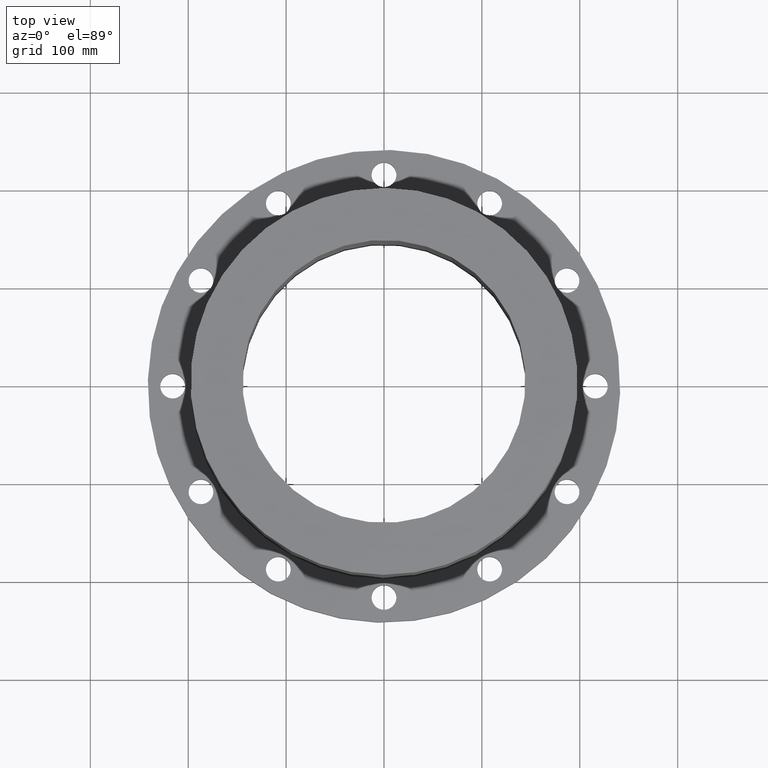
[diagram: clean part render]
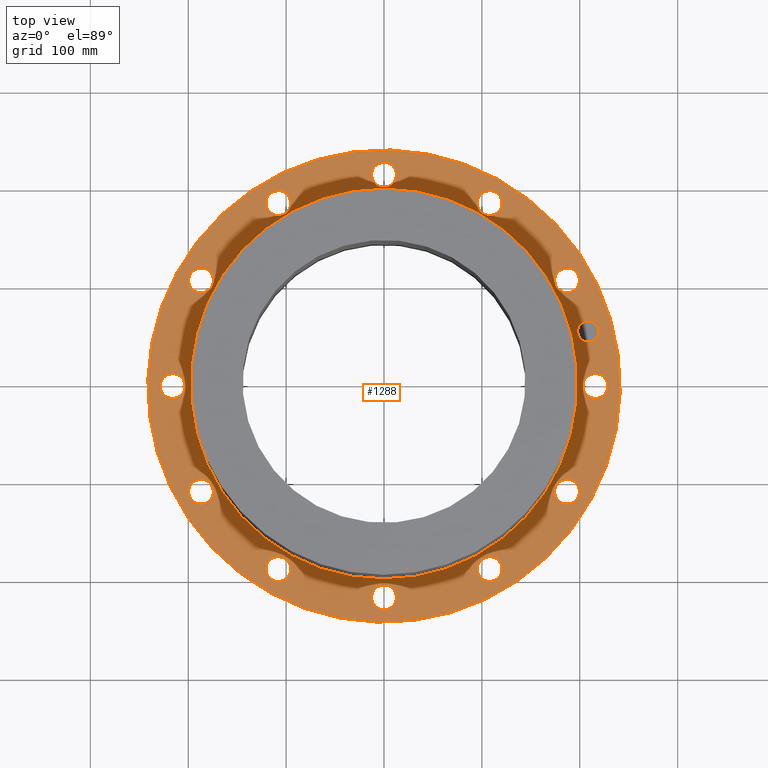
[diagram: same view with one face highlighted and labeled with its STEP entity id]
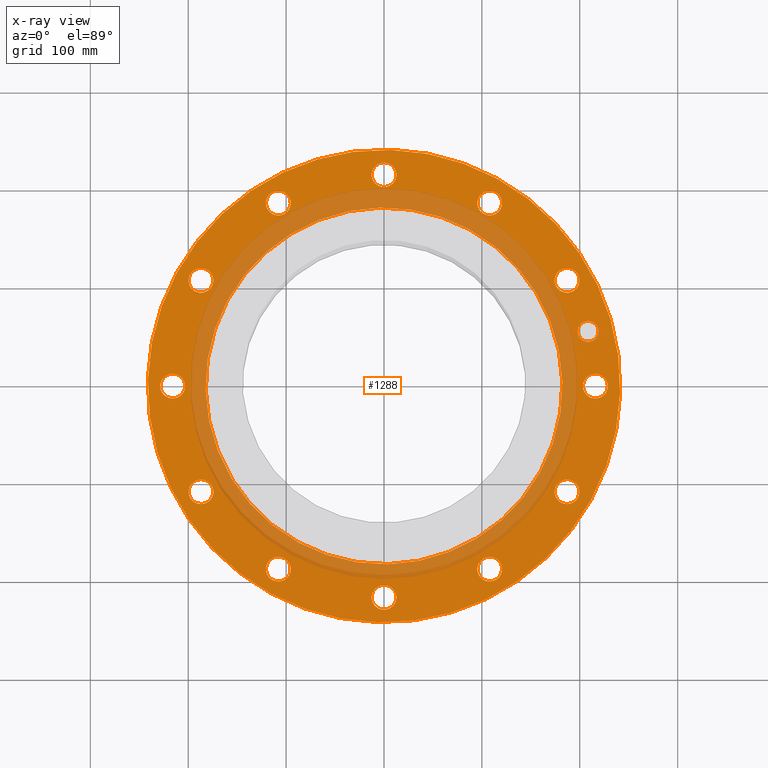
[diagram: x-ray of the same camera — body ghosted, the highlighted face saturated]
A machine part, top view. The second image highlights one B-rep face of the part: STEP entity #1288.
The next image is the same camera in x-ray: the body ghosted, the highlighted face saturated — about 27% of this face is hidden behind the body in this view.
In plain terms, the highlighted planar face has unit normal (0, 0, -1).
Its self-contained STEP definition (entity closure, byte-faithful):
#51=AXIS2_PLACEMENT_3D('Circle Axis2P3D',#49,#50,$) ;
#326=AXIS2_PLACEMENT_3D('Circle Axis2P3D',#324,#325,$) ;
#350=AXIS2_PLACEMENT_3D('Circle Axis2P3D',#348,#349,$) ;
#369=AXIS2_PLACEMENT_3D('Circle Axis2P3D',#367,#368,$) ;
#386=AXIS2_PLACEMENT_3D('Circle Axis2P3D',#384,#385,$) ;
#421=AXIS2_PLACEMENT_3D('Circle Axis2P3D',#419,#420,$) ;
#750=AXIS2_PLACEMENT_3D('Circle Axis2P3D',#748,#749,$) ;
#769=AXIS2_PLACEMENT_3D('Circle Axis2P3D',#767,#768,$) ;
#793=AXIS2_PLACEMENT_3D('Circle Axis2P3D',#791,#792,$) ;
#812=AXIS2_PLACEMENT_3D('Circle Axis2P3D',#810,#811,$) ;
#836=AXIS2_PLACEMENT_3D('Circle Axis2P3D',#834,#835,$) ;
#855=AXIS2_PLACEMENT_3D('Circle Axis2P3D',#853,#854,$) ;
#879=AXIS2_PLACEMENT_3D('Circle Axis2P3D',#877,#878,$) ;
#898=AXIS2_PLACEMENT_3D('Circle Axis2P3D',#896,#897,$) ;
#922=AXIS2_PLACEMENT_3D('Circle Axis2P3D',#920,#921,$) ;
#941=AXIS2_PLACEMENT_3D('Circle Axis2P3D',#939,#940,$) ;
#965=AXIS2_PLACEMENT_3D('Circle Axis2P3D',#963,#964,$) ;
#984=AXIS2_PLACEMENT_3D('Circle Axis2P3D',#982,#983,$) ;
#1008=AXIS2_PLACEMENT_3D('Circle Axis2P3D',#1006,#1007,$) ;
#1027=AXIS2_PLACEMENT_3D('Circle Axis2P3D',#1025,#1026,$) ;
#1051=AXIS2_PLACEMENT_3D('Circle Axis2P3D',#1049,#1050,$) ;
#1070=AXIS2_PLACEMENT_3D('Circle Axis2P3D',#1068,#1069,$) ;
#1094=AXIS2_PLACEMENT_3D('Circle Axis2P3D',#1092,#1093,$) ;
#1113=AXIS2_PLACEMENT_3D('Circle Axis2P3D',#1111,#1112,$) ;
#1137=AXIS2_PLACEMENT_3D('Circle Axis2P3D',#1135,#1136,$) ;
#1156=AXIS2_PLACEMENT_3D('Circle Axis2P3D',#1154,#1155,$) ;
#1180=AXIS2_PLACEMENT_3D('Circle Axis2P3D',#1178,#1179,$) ;
#1199=AXIS2_PLACEMENT_3D('Circle Axis2P3D',#1197,#1198,$) ;
#1212=AXIS2_PLACEMENT_3D('Plane Axis2P3D',#1209,#1210,#1211) ;
#1272=AXIS2_PLACEMENT_3D('Circle Axis2P3D',#1270,#1271,$) ;
#1281=AXIS2_PLACEMENT_3D('Circle Axis2P3D',#1279,#1280,$) ;
#44=CARTESIAN_POINT('Vertex',(8.06120871909,-0.239712769303,1.1875)) ;
#49=CARTESIAN_POINT('Axis2P3D Location',(8.50000000003,0.,1.1875)) ;
#53=CARTESIAN_POINT('Vertex',(8.93879128098,0.239712769303,1.1875)) ;
#324=CARTESIAN_POINT('Axis2P3D Location',(8.50000000003,0.,1.1875)) ;
#345=CARTESIAN_POINT('Vertex',(-4.55454261676,-8.33703433799,1.1875)) ;
#348=CARTESIAN_POINT('Axis2P3D Location',(0.,0.,1.1875)) ;
#352=CARTESIAN_POINT('Vertex',(4.55454261676,8.33703433799,1.1875)) ;
#367=CARTESIAN_POINT('Axis2P3D Location',(0.,0.,1.1875)) ;
#384=CARTESIAN_POINT('Axis2P3D Location',(0.,0.,1.1875)) ;
#388=CARTESIAN_POINT('Vertex',(3.4398782395,6.29665488159,1.1875)) ;
#390=CARTESIAN_POINT('Vertex',(-3.4398782395,-6.29665488159,1.1875)) ;
#419=CARTESIAN_POINT('Axis2P3D Location',(0.,0.,1.1875)) ;
#745=CARTESIAN_POINT('Vertex',(6.86135515129,-4.23820170737,1.1875)) ;
#748=CARTESIAN_POINT('Axis2P3D Location',(7.3612159322,-4.25000000002,1.1875)) ;
#752=CARTESIAN_POINT('Vertex',(7.86107671311,-4.26179829266,1.1875)) ;
#767=CARTESIAN_POINT('Axis2P3D Location',(7.3612159322,-4.25000000002,1.1875)) ;
#788=CARTESIAN_POINT('Vertex',(3.82300701172,-7.10106792059,1.1875)) ;
#791=CARTESIAN_POINT('Axis2P3D Location',(4.25000000002,-7.3612159322,1.1875)) ;
#795=CARTESIAN_POINT('Vertex',(4.67699298832,-7.6213639438,1.1875)) ;
#810=CARTESIAN_POINT('Axis2P3D Location',(4.25000000002,-7.3612159322,1.1875)) ;
#831=CARTESIAN_POINT('Vertex',(-0.239712769303,-8.06120871909,1.1875)) ;
#834=CARTESIAN_POINT('Axis2P3D Location',(5.2047488964E-016,-8.50000000003,1.1875)) ;
#838=CARTESIAN_POINT('Vertex',(0.239712769303,-8.93879128098,1.1875)) ;
#853=CARTESIAN_POINT('Axis2P3D Location',(5.2047488964E-016,-8.50000000003,1.1875)) ;
#874=CARTESIAN_POINT('Vertex',(-4.23820170737,-6.86135515129,1.1875)) ;
#877=CARTESIAN_POINT('Axis2P3D Location',(-4.25000000002,-7.3612159322,1.1875)) ;
#881=CARTESIAN_POINT('Vertex',(-4.26179829266,-7.86107671311,1.1875)) ;
#896=CARTESIAN_POINT('Axis2P3D Location',(-4.25000000002,-7.3612159322,1.1875)) ;
#917=CARTESIAN_POINT('Vertex',(-7.10106792059,-3.82300701172,1.1875)) ;
#920=CARTESIAN_POINT('Axis2P3D Location',(-7.3612159322,-4.25000000002,1.1875)) ;
#924=CARTESIAN_POINT('Vertex',(-7.6213639438,-4.67699298832,1.1875)) ;
#939=CARTESIAN_POINT('Axis2P3D Location',(-7.3612159322,-4.25000000002,1.1875)) ;
#960=CARTESIAN_POINT('Vertex',(-8.06120871909,0.239712769303,1.1875)) ;
#963=CARTESIAN_POINT('Axis2P3D Location',(-8.50000000003,-1.04094977928E-015,1.1875)) ;
#967=CARTESIAN_POINT('Vertex',(-8.93879128098,-0.239712769303,1.1875)) ;
#982=CARTESIAN_POINT('Axis2P3D Location',(-8.50000000003,-1.04094977928E-015,1.1875)) ;
#1003=CARTESIAN_POINT('Vertex',(-6.86135515129,4.23820170737,1.1875)) ;
#1006=CARTESIAN_POINT('Axis2P3D Location',(-7.3612159322,4.25000000002,1.1875)) ;
#1010=CARTESIAN_POINT('Vertex',(-7.86107671311,4.26179829266,1.1875)) ;
#1025=CARTESIAN_POINT('Axis2P3D Location',(-7.3612159322,4.25000000002,1.1875)) ;
#1046=CARTESIAN_POINT('Vertex',(-3.82300701172,7.10106792059,1.1875)) ;
#1049=CARTESIAN_POINT('Axis2P3D Location',(-4.25000000002,7.3612159322,1.1875)) ;
#1053=CARTESIAN_POINT('Vertex',(-4.67699298832,7.6213639438,1.1875)) ;
#1068=CARTESIAN_POINT('Axis2P3D Location',(-4.25000000002,7.3612159322,1.1875)) ;
#1089=CARTESIAN_POINT('Vertex',(0.239712769303,8.06120871909,1.1875)) ;
#1092=CARTESIAN_POINT('Axis2P3D Location',(-4.42459730714E-016,8.50000000003,1.1875)) ;
#1096=CARTESIAN_POINT('Vertex',(-0.239712769303,8.93879128098,1.1875)) ;
#1111=CARTESIAN_POINT('Axis2P3D Location',(-4.42459730714E-016,8.50000000003,1.1875)) ;
#1132=CARTESIAN_POINT('Vertex',(4.23820170737,6.86135515129,1.1875)) ;
#1135=CARTESIAN_POINT('Axis2P3D Location',(4.25000000002,7.3612159322,1.1875)) ;
#1139=CARTESIAN_POINT('Vertex',(4.26179829266,7.86107671311,1.1875)) ;
#1154=CARTESIAN_POINT('Axis2P3D Location',(4.25000000002,7.3612159322,1.1875)) ;
#1175=CARTESIAN_POINT('Vertex',(7.10106792059,3.82300701172,1.1875)) ;
#1178=CARTESIAN_POINT('Axis2P3D Location',(7.3612159322,4.25000000002,1.1875)) ;
#1182=CARTESIAN_POINT('Vertex',(7.6213639438,4.67699298832,1.1875)) ;
#1197=CARTESIAN_POINT('Axis2P3D Location',(7.3612159322,4.25000000002,1.1875)) ;
#1209=CARTESIAN_POINT('Axis2P3D Location',(0.,9.50000000004,1.1875)) ;
#1270=CARTESIAN_POINT('Axis2P3D Location',(8.21036952349,2.19996188338,1.1875)) ;
#1274=CARTESIAN_POINT('Vertex',(8.32036761656,1.78944341131,1.1875)) ;
#1276=CARTESIAN_POINT('Vertex',(8.10037143042,2.61048035545,1.1875)) ;
#1279=CARTESIAN_POINT('Axis2P3D Location',(8.21036952349,2.19996188338,1.1875)) ;
#50=DIRECTION('Axis2P3D Direction',(0.,-0.,0.0393700787402)) ;
#325=DIRECTION('Axis2P3D Direction',(0.,-0.,0.0393700787402)) ;
#349=DIRECTION('Axis2P3D Direction',(0.,0.,-0.0393700787402)) ;
#368=DIRECTION('Axis2P3D Direction',(0.,0.,-0.0393700787402)) ;
#385=DIRECTION('Axis2P3D Direction',(0.,0.,-0.0393700787402)) ;
#420=DIRECTION('Axis2P3D Direction',(0.,0.,-0.0393700787402)) ;
#749=DIRECTION('Axis2P3D Direction',(-0.,0.,0.0393700787402)) ;
#768=DIRECTION('Axis2P3D Direction',(-0.,0.,0.0393700787402)) ;
#792=DIRECTION('Axis2P3D Direction',(-0.,0.,0.0393700787402)) ;
#811=DIRECTION('Axis2P3D Direction',(-0.,0.,0.0393700787402)) ;
#835=DIRECTION('Axis2P3D Direction',(-0.,0.,0.0393700787402)) ;
#854=DIRECTION('Axis2P3D Direction',(-0.,0.,0.0393700787402)) ;
#878=DIRECTION('Axis2P3D Direction',(0.,0.,0.0393700787402)) ;
#897=DIRECTION('Axis2P3D Direction',(0.,0.,0.0393700787402)) ;
#921=DIRECTION('Axis2P3D Direction',(0.,0.,0.0393700787402)) ;
#940=DIRECTION('Axis2P3D Direction',(0.,0.,0.0393700787402)) ;
#964=DIRECTION('Axis2P3D Direction',(0.,0.,0.0393700787402)) ;
#983=DIRECTION('Axis2P3D Direction',(0.,0.,0.0393700787402)) ;
#1007=DIRECTION('Axis2P3D Direction',(0.,0.,0.0393700787402)) ;
#1026=DIRECTION('Axis2P3D Direction',(0.,0.,0.0393700787402)) ;
#1050=DIRECTION('Axis2P3D Direction',(0.,0.,0.0393700787402)) ;
#1069=DIRECTION('Axis2P3D Direction',(0.,0.,0.0393700787402)) ;
#1093=DIRECTION('Axis2P3D Direction',(0.,0.,0.0393700787402)) ;
#1112=DIRECTION('Axis2P3D Direction',(0.,0.,0.0393700787402)) ;
#1136=DIRECTION('Axis2P3D Direction',(0.,-0.,0.0393700787402)) ;
#1155=DIRECTION('Axis2P3D Direction',(0.,-0.,0.0393700787402)) ;
#1179=DIRECTION('Axis2P3D Direction',(0.,-0.,0.0393700787402)) ;
#1198=DIRECTION('Axis2P3D Direction',(0.,-0.,0.0393700787402)) ;
#1210=DIRECTION('Axis2P3D Direction',(0.,0.,-0.0393700787402)) ;
#1211=DIRECTION('Axis2P3D XDirection',(0.0393700787402,0.,0.)) ;
#1271=DIRECTION('Axis2P3D Direction',(0.,0.,-0.0393700787402)) ;
#1280=DIRECTION('Axis2P3D Direction',(0.,0.,-0.0393700787402)) ;
#1215=ORIENTED_EDGE('',*,*,#371,.F.) ;
#1216=ORIENTED_EDGE('',*,*,#354,.F.) ;
#1219=ORIENTED_EDGE('',*,*,#55,.T.) ;
#1220=ORIENTED_EDGE('',*,*,#328,.T.) ;
#1223=ORIENTED_EDGE('',*,*,#423,.T.) ;
#1224=ORIENTED_EDGE('',*,*,#392,.T.) ;
#1227=ORIENTED_EDGE('',*,*,#771,.T.) ;
#1228=ORIENTED_EDGE('',*,*,#754,.T.) ;
#1231=ORIENTED_EDGE('',*,*,#814,.T.) ;
#1232=ORIENTED_EDGE('',*,*,#797,.T.) ;
#1235=ORIENTED_EDGE('',*,*,#857,.T.) ;
#1236=ORIENTED_EDGE('',*,*,#840,.T.) ;
#1239=ORIENTED_EDGE('',*,*,#900,.T.) ;
#1240=ORIENTED_EDGE('',*,*,#883,.T.) ;
#1243=ORIENTED_EDGE('',*,*,#943,.T.) ;
#1244=ORIENTED_EDGE('',*,*,#926,.T.) ;
#1247=ORIENTED_EDGE('',*,*,#986,.T.) ;
#1248=ORIENTED_EDGE('',*,*,#969,.T.) ;
#1251=ORIENTED_EDGE('',*,*,#1029,.T.) ;
#1252=ORIENTED_EDGE('',*,*,#1012,.T.) ;
#1255=ORIENTED_EDGE('',*,*,#1072,.T.) ;
#1256=ORIENTED_EDGE('',*,*,#1055,.T.) ;
#1259=ORIENTED_EDGE('',*,*,#1115,.T.) ;
#1260=ORIENTED_EDGE('',*,*,#1098,.T.) ;
#1263=ORIENTED_EDGE('',*,*,#1158,.T.) ;
#1264=ORIENTED_EDGE('',*,*,#1141,.T.) ;
#1267=ORIENTED_EDGE('',*,*,#1201,.T.) ;
#1268=ORIENTED_EDGE('',*,*,#1184,.T.) ;
#1285=ORIENTED_EDGE('',*,*,#1278,.F.) ;
#1286=ORIENTED_EDGE('',*,*,#1283,.F.) ;
#1221=FACE_BOUND('',#1218,.T.) ;
#1225=FACE_BOUND('',#1222,.T.) ;
#1229=FACE_BOUND('',#1226,.T.) ;
#1233=FACE_BOUND('',#1230,.T.) ;
#1237=FACE_BOUND('',#1234,.T.) ;
#1241=FACE_BOUND('',#1238,.T.) ;
#1245=FACE_BOUND('',#1242,.T.) ;
#1249=FACE_BOUND('',#1246,.T.) ;
#1253=FACE_BOUND('',#1250,.T.) ;
#1257=FACE_BOUND('',#1254,.T.) ;
#1261=FACE_BOUND('',#1258,.T.) ;
#1265=FACE_BOUND('',#1262,.T.) ;
#1269=FACE_BOUND('',#1266,.T.) ;
#1287=FACE_BOUND('',#1284,.T.) ;
#1288=ADVANCED_FACE('PartBody',(#1217,#1221,#1225,#1229,#1233,#1237,#1241,#1245,#1249,#1253,#1257,#1261,#1265,#1269,#1287),#1213,.F.) ;
#52=CIRCLE('generated circle',#51,0.500000000002) ;
#327=CIRCLE('generated circle',#326,0.500000000002) ;
#351=CIRCLE('generated circle',#350,9.50000000004) ;
#370=CIRCLE('generated circle',#369,9.50000000004) ;
#387=CIRCLE('generated circle',#386,7.17500000003) ;
#422=CIRCLE('generated circle',#421,7.17500000003) ;
#751=CIRCLE('generated circle',#750,0.500000000002) ;
#770=CIRCLE('generated circle',#769,0.500000000002) ;
#794=CIRCLE('generated circle',#793,0.500000000002) ;
#813=CIRCLE('generated circle',#812,0.500000000002) ;
#837=CIRCLE('generated circle',#836,0.500000000002) ;
#856=CIRCLE('generated circle',#855,0.500000000002) ;
#880=CIRCLE('generated circle',#879,0.500000000002) ;
#899=CIRCLE('generated circle',#898,0.500000000002) ;
#923=CIRCLE('generated circle',#922,0.500000000002) ;
#942=CIRCLE('generated circle',#941,0.500000000002) ;
#966=CIRCLE('generated circle',#965,0.500000000002) ;
#985=CIRCLE('generated circle',#984,0.500000000002) ;
#1009=CIRCLE('generated circle',#1008,0.500000000002) ;
#1028=CIRCLE('generated circle',#1027,0.500000000002) ;
#1052=CIRCLE('generated circle',#1051,0.500000000002) ;
#1071=CIRCLE('generated circle',#1070,0.500000000002) ;
#1095=CIRCLE('generated circle',#1094,0.500000000002) ;
#1114=CIRCLE('generated circle',#1113,0.500000000002) ;
#1138=CIRCLE('generated circle',#1137,0.500000000002) ;
#1157=CIRCLE('generated circle',#1156,0.500000000002) ;
#1181=CIRCLE('generated circle',#1180,0.500000000002) ;
#1200=CIRCLE('generated circle',#1199,0.500000000002) ;
#1273=CIRCLE('generated circle',#1272,0.424999995752) ;
#1282=CIRCLE('generated circle',#1281,0.424999995752) ;
#55=EDGE_CURVE('',#54,#45,#52,.F.) ;
#328=EDGE_CURVE('',#45,#54,#327,.F.) ;
#354=EDGE_CURVE('',#346,#353,#351,.T.) ;
#371=EDGE_CURVE('',#353,#346,#370,.T.) ;
#392=EDGE_CURVE('',#389,#391,#387,.T.) ;
#423=EDGE_CURVE('',#391,#389,#422,.T.) ;
#754=EDGE_CURVE('',#753,#746,#751,.F.) ;
#771=EDGE_CURVE('',#746,#753,#770,.F.) ;
#797=EDGE_CURVE('',#796,#789,#794,.F.) ;
#814=EDGE_CURVE('',#789,#796,#813,.F.) ;
#840=EDGE_CURVE('',#839,#832,#837,.F.) ;
#857=EDGE_CURVE('',#832,#839,#856,.F.) ;
#883=EDGE_CURVE('',#882,#875,#880,.F.) ;
#900=EDGE_CURVE('',#875,#882,#899,.F.) ;
#926=EDGE_CURVE('',#925,#918,#923,.F.) ;
#943=EDGE_CURVE('',#918,#925,#942,.F.) ;
#969=EDGE_CURVE('',#968,#961,#966,.F.) ;
#986=EDGE_CURVE('',#961,#968,#985,.F.) ;
#1012=EDGE_CURVE('',#1011,#1004,#1009,.F.) ;
#1029=EDGE_CURVE('',#1004,#1011,#1028,.F.) ;
#1055=EDGE_CURVE('',#1054,#1047,#1052,.F.) ;
#1072=EDGE_CURVE('',#1047,#1054,#1071,.F.) ;
#1098=EDGE_CURVE('',#1097,#1090,#1095,.F.) ;
#1115=EDGE_CURVE('',#1090,#1097,#1114,.F.) ;
#1141=EDGE_CURVE('',#1140,#1133,#1138,.F.) ;
#1158=EDGE_CURVE('',#1133,#1140,#1157,.F.) ;
#1184=EDGE_CURVE('',#1183,#1176,#1181,.F.) ;
#1201=EDGE_CURVE('',#1176,#1183,#1200,.F.) ;
#1278=EDGE_CURVE('',#1275,#1277,#1273,.F.) ;
#1283=EDGE_CURVE('',#1277,#1275,#1282,.F.) ;
#1214=EDGE_LOOP('',(#1215,#1216)) ;
#1218=EDGE_LOOP('',(#1219,#1220)) ;
#1222=EDGE_LOOP('',(#1223,#1224)) ;
#1226=EDGE_LOOP('',(#1227,#1228)) ;
#1230=EDGE_LOOP('',(#1231,#1232)) ;
#1234=EDGE_LOOP('',(#1235,#1236)) ;
#1238=EDGE_LOOP('',(#1239,#1240)) ;
#1242=EDGE_LOOP('',(#1243,#1244)) ;
#1246=EDGE_LOOP('',(#1247,#1248)) ;
#1250=EDGE_LOOP('',(#1251,#1252)) ;
#1254=EDGE_LOOP('',(#1255,#1256)) ;
#1258=EDGE_LOOP('',(#1259,#1260)) ;
#1262=EDGE_LOOP('',(#1263,#1264)) ;
#1266=EDGE_LOOP('',(#1267,#1268)) ;
#1284=EDGE_LOOP('',(#1285,#1286)) ;
#1217=FACE_OUTER_BOUND('',#1214,.T.) ;
#1213=PLANE('',#1212) ;
#45=VERTEX_POINT('',#44) ;
#54=VERTEX_POINT('',#53) ;
#346=VERTEX_POINT('',#345) ;
#353=VERTEX_POINT('',#352) ;
#389=VERTEX_POINT('',#388) ;
#391=VERTEX_POINT('',#390) ;
#746=VERTEX_POINT('',#745) ;
#753=VERTEX_POINT('',#752) ;
#789=VERTEX_POINT('',#788) ;
#796=VERTEX_POINT('',#795) ;
#832=VERTEX_POINT('',#831) ;
#839=VERTEX_POINT('',#838) ;
#875=VERTEX_POINT('',#874) ;
#882=VERTEX_POINT('',#881) ;
#918=VERTEX_POINT('',#917) ;
#925=VERTEX_POINT('',#924) ;
#961=VERTEX_POINT('',#960) ;
#968=VERTEX_POINT('',#967) ;
#1004=VERTEX_POINT('',#1003) ;
#1011=VERTEX_POINT('',#1010) ;
#1047=VERTEX_POINT('',#1046) ;
#1054=VERTEX_POINT('',#1053) ;
#1090=VERTEX_POINT('',#1089) ;
#1097=VERTEX_POINT('',#1096) ;
#1133=VERTEX_POINT('',#1132) ;
#1140=VERTEX_POINT('',#1139) ;
#1176=VERTEX_POINT('',#1175) ;
#1183=VERTEX_POINT('',#1182) ;
#1275=VERTEX_POINT('',#1274) ;
#1277=VERTEX_POINT('',#1276) ;